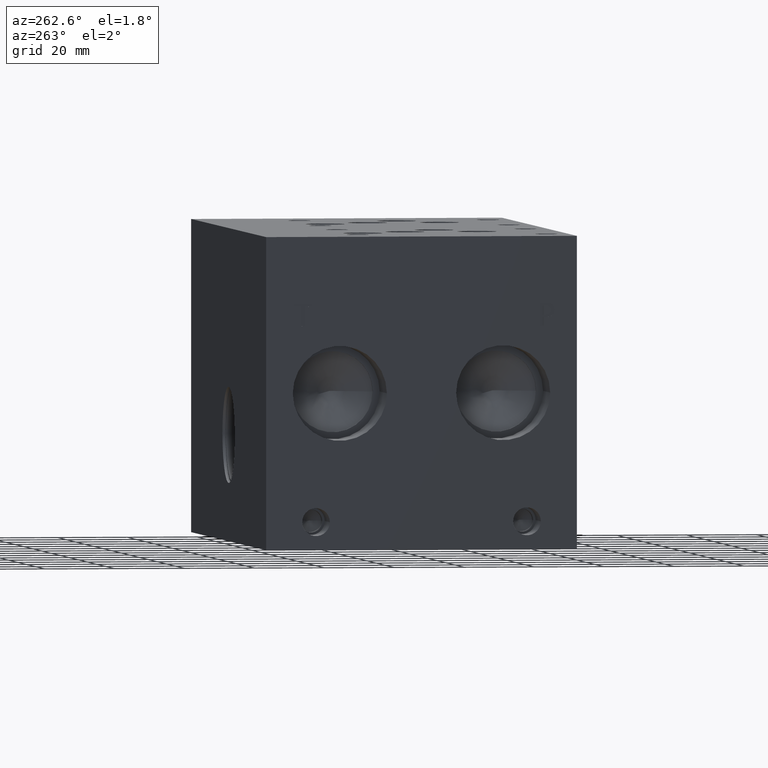
[diagram: clean part render]
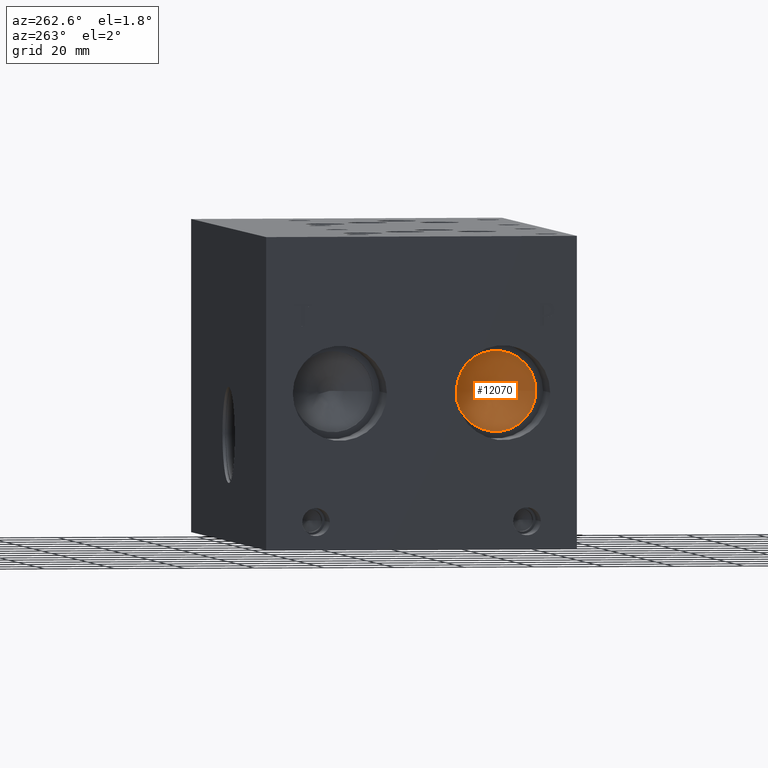
[diagram: same view with one face highlighted and labeled with its STEP entity id]
A machine part, auxiliary view. The second image highlights one B-rep face of the part: STEP entity #12070.
In plain terms, the highlighted conical surface has half-angle 60 deg.
Its self-contained STEP definition (entity closure, byte-faithful):
#19=CONICAL_SURFACE('',#12593,5.7531,1.0471975511966);
#162=CIRCLE('',#12594,11.5062);
#163=CIRCLE('',#12595,11.5062);
#1449=FACE_OUTER_BOUND('',#2136,.T.);
#2136=EDGE_LOOP('',(#10208,#10209,#10210,#10211));
#3320=LINE('',#20485,#4445);
#4445=VECTOR('',#14712,5.7531);
#5505=VERTEX_POINT('',#20481);
#5506=VERTEX_POINT('',#20482);
#5507=VERTEX_POINT('',#20484);
#7131=EDGE_CURVE('',#5505,#5506,#162,.T.);
#7132=EDGE_CURVE('',#5506,#5507,#3320,.T.);
#7133=EDGE_CURVE('',#5506,#5505,#163,.T.);
#10208=ORIENTED_EDGE('',*,*,#7131,.T.);
#10209=ORIENTED_EDGE('',*,*,#7132,.T.);
#10210=ORIENTED_EDGE('',*,*,#7132,.F.);
#10211=ORIENTED_EDGE('',*,*,#7133,.T.);
#12070=ADVANCED_FACE('',(#1449),#19,.F.);
#12593=AXIS2_PLACEMENT_3D('',#20480,#14708,#14709);
#12594=AXIS2_PLACEMENT_3D('',#20483,#14710,#14711);
#12595=AXIS2_PLACEMENT_3D('',#20486,#14713,#14714);
#14708=DIRECTION('center_axis',(-1.,0.,0.));
#14709=DIRECTION('ref_axis',(0.,1.,0.));
#14710=DIRECTION('center_axis',(-1.,0.,0.));
#14711=DIRECTION('ref_axis',(0.,1.,0.));
#14712=DIRECTION('',(0.5,0.866025403784439,-1.06057523872491E-16));
#14713=DIRECTION('center_axis',(-1.,0.,0.));
#14714=DIRECTION('ref_axis',(0.,1.,0.));
#20480=CARTESIAN_POINT('Origin',(19.8354638336748,21.082,44.45));
#20481=CARTESIAN_POINT('',(16.51391,32.5882,44.45));
#20482=CARTESIAN_POINT('',(16.51391,9.5758,44.45));
#20483=CARTESIAN_POINT('Origin',(16.51391,21.082,44.45));
#20484=CARTESIAN_POINT('',(23.1570176673497,21.082,44.45));
#20485=CARTESIAN_POINT('',(19.8354638336748,15.3289,44.45));
#20486=CARTESIAN_POINT('Origin',(16.51391,21.082,44.45));